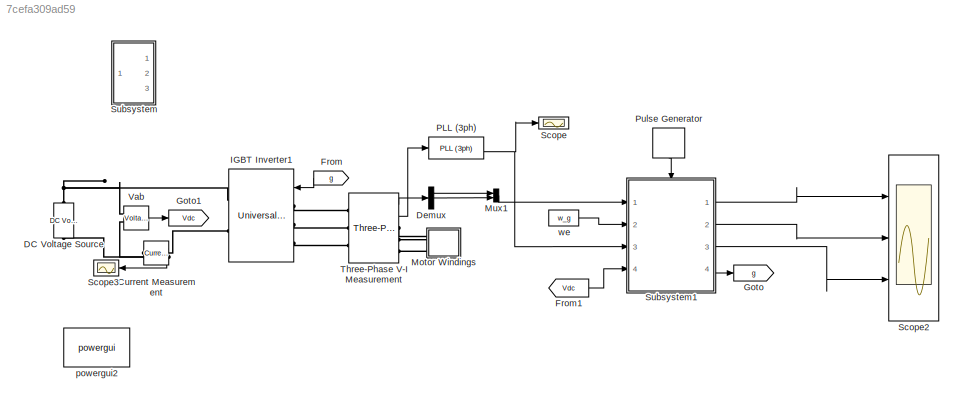
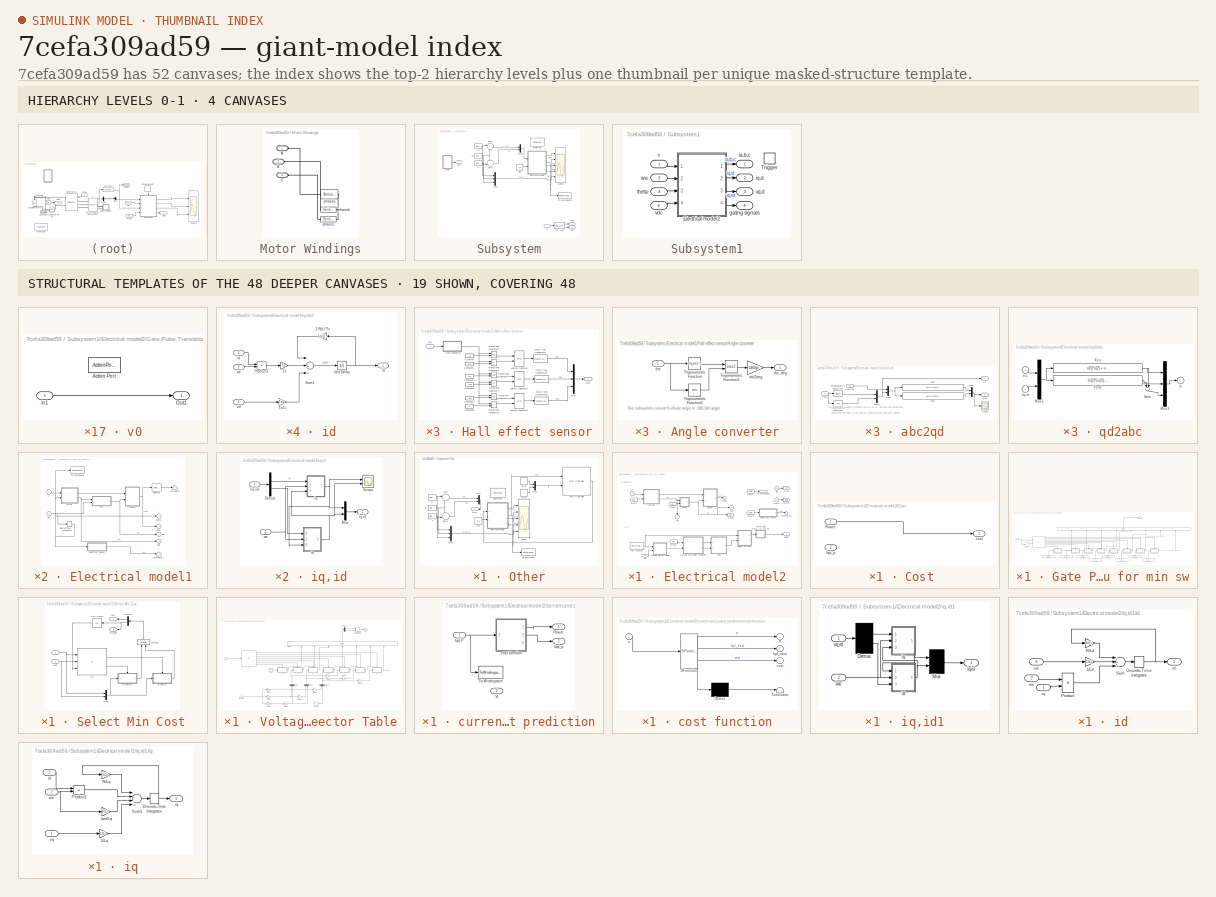
[diagram: thumbnail index - top-2 hierarchy levels (4 canvases) + 19 structural-template representatives of the remaining 48 canvases]
MODEL slx_7cefa309ad59
KIND model
CONFIG AbsTol = auto
CONFIG FixedStep = Ts
CONFIG MaxStep = auto
CONFIG MinStep = auto
CONFIG RelTol = 1e-3
CONFIG SampleTimeConstraint = Unconstrained
CONFIG Solver = VariableStepAuto
CONFIG SolverMode = Auto
CONFIG SolverName = VariableStepAuto
CONFIG StartTime = 0.0
CONFIG StopTime = 5
BLOCK [Reference] Current Measurement  REF=powerlib/Measurements/Current Measurement
  Ports = [0, 1, 0, 0, 0, 1, 1]
  SourceBlock = powerlib/Measurements/Current Measurement
  SourceType = Current Measurement
  UserDataPersistent = on
BLOCK [Reference] DC Voltage Source  REF=powerlib/Electrical
Sources/DC Voltage Source
  Ports = [0, 0, 0, 0, 0, 1, 1]
  SourceBlock = powerlib/Electrical\nSources/DC Voltage Source
  SourceType = DC Voltage Source
BLOCK [Demux] Demux
  DisplayOption = bar
  Outputs = 3
  Ports = [1, 3]
BLOCK [From] From
  GotoTag = g
BLOCK [From] From1
  GotoTag = Vdc
BLOCK [Goto] Goto
  GotoTag = g
BLOCK [Goto] Goto1
  GotoTag = Vdc
BLOCK [Reference] IGBT Inverter1  REF=powerlib/Power
Electronics/Universal Bridge
  AttributesFormatString = \n
  Ports = [1, 0, 0, 0, 0, 3, 2]
  SourceBlock = powerlib/Power\nElectronics/Universal Bridge
  SourceType = Universal Bridge
BLOCK [SubSystem] Motor Windings
  Ports = [0, 0, 0, 0, 0, 3]
  RequestExecContextInheritance = off
  Variant = off
BLOCK [PMIOPort] Motor Windings/A
  Port = 1
  Side = Left
BLOCK [PMIOPort] Motor Windings/B
  Port = 2
  Side = Left
BLOCK [PMIOPort] Motor Windings/C
  Port = 3
  Side = Left
BLOCK [Reference] Motor Windings/phasea  REF=powerlib/Elements/Series RLC Branch
  Ports = [0, 0, 0, 0, 0, 1, 1]
  SourceBlock = powerlib/Elements/Series RLC Branch
  SourceType = Series RLC Branch
BLOCK [Reference] Motor Windings/phaseb  REF=powerlib/Elements/Series RLC Branch
  Ports = [0, 0, 0, 0, 0, 1, 1]
  SourceBlock = powerlib/Elements/Series RLC Branch
  SourceType = Series RLC Branch
BLOCK [Reference] Motor Windings/phasec  REF=powerlib/Elements/Series RLC Branch
  Ports = [0, 0, 0, 0, 0, 1, 1]
  SourceBlock = powerlib/Elements/Series RLC Branch
  SourceType = Series RLC Branch
BLOCK [Mux] Mux1
  DisplayOption = bar
  Inputs = 2
  Ports = [2, 1]
BLOCK [Reference] PLL (3ph)  REF=powerlib_meascontrol/PLL/PLL
(3ph)
  Ports = [1, 2]
  SourceBlock = powerlib_meascontrol/PLL/PLL\n(3ph)
  SourceType = PLL (3ph)
BLOCK [DiscretePulseGenerator] Pulse Generator
  Period = Ts
  Ports = [0, 1]
  PulseType = Time based
  PulseWidth = 20
BLOCK [Scope] Scope
  Ports = [1]
  ScopeSpecificationString = Simulink.scopes.TimeScopeBlockCfg('CurrentConfiguration', extmgr.ConfigurationSet(extmgr.Configuration('Core','General UI',true),extmgr.Configuration('Core','Source UI',true),extmgr.Configuration('Sources','WiredSimulink',true,'DataLoggingVariableName','ScopeData4'),extmgr.Configuration('Visuals','Time Domain',true,'SerializedDisplays',{struct('MinYLimReal','-0.27554','MaxYLimReal','6.86247','YLab...<+1389ch>
BLOCK [Scope] Scope2
  NumInputPorts = 3
  Ports = [3]
  ScopeSpecificationString = Simulink.scopes.TimeScopeBlockCfg('CurrentConfiguration', extmgr.ConfigurationSet(extmgr.Configuration('Core','General UI',true),extmgr.Configuration('Core','Source UI',true),extmgr.Configuration('Sources','WiredSimulink',true,'DataLoggingVariableName','ScopeData2'),extmgr.Configuration('Visuals','Time Domain',true,'SerializedDisplays',{struct('MinYLimReal','-4096.69283','MaxYLimReal','4097.20983'...<+2824ch>
BLOCK [Scope] Scope3
  Ports = [1]
  ScopeSpecificationString = C++SS(StrPVP('SaveName','ScopeData3'),StrPVP('LimitDataPoints','on'),StrPVP('DataFormat','Array'),StrPVP('Decimation','1'),StrPVP('BlockParamSampleInput','off'))
BLOCK [SubSystem] Subsystem
  Commented = on
  Ports = [1, 3]
  RequestExecContextInheritance = off
  Variant = off
BLOCK [SubSystem] Subsystem/Electrical model1
  AncestorBlock = spsPMSynchronousMachineModel/Continuous
  Commented = on
  Ports = [2, 4]
  RequestExecContextInheritance = off
  Variant = off
BLOCK [DiscreteIntegrator] Subsystem/Electrical model1/Discret-Time Integrator
  ICPrevOutput = DiscIntNeverNeededParam
  ICPrevScaledInput = DiscIntNeverNeededParam
  InitialConditionSetting = State (most efficient)
  IntegratorMethod = Integration: Backward Euler
  Ports = [1, 1]
  SampleTime = Ts
  gainval = 1
BLOCK [SubSystem] Subsystem/Electrical model1/Hall effect sensor
  Ports = [1, 1]
  RequestExecContextInheritance = off
  Variant = off
BLOCK [SubSystem] Subsystem/Electrical model1/Hall effect sensor/Angle converter
  Ports = [1, 1]
  RequestExecContextInheritance = off
  Variant = off
BLOCK [Trigonometry] Subsystem/Electrical model1/Hall effect sensor/Angle converter/Trigonometric Function
  Ports = [1, 1]
BLOCK [Trigonometry] Subsystem/Electrical model1/Hall effect sensor/Angle converter/Trigonometric Function1
  Operator = cos
  Ports = [1, 1]
BLOCK [Trigonometry] Subsystem/Electrical model1/Hall effect sensor/Angle converter/Trigonometric Function2
  Operator = atan2
  Ports = [2, 1]
BLOCK [Gain] Subsystem/Electrical model1/Hall effect sensor/Angle converter/rad2deg
  Gain = 180/pi
BLOCK [Inport] Subsystem/Electrical model1/Hall effect sensor/Angle converter/the
  IconDisplay = Port number
BLOCK [Outport] Subsystem/Electrical model1/Hall effect sensor/Angle converter/the_deg
  IconDisplay = Port number
BLOCK [Constant] Subsystem/Electrical model1/Hall effect sensor/Constant
  Value = -60
BLOCK [Constant] Subsystem/Electrical model1/Hall effect sensor/Constant1
  Value = 120
BLOCK [Constant] Subsystem/Electrical model1/Hall effect sensor/Constant2
  Value = 60
BLOCK [Constant] Subsystem/Electrical model1/Hall effect sensor/Constant3
  Value = -120
BLOCK [Constant] Subsystem/Electrical model1/Hall effect sensor/Constant4
  Value = -180
BLOCK [Constant] Subsystem/Electrical model1/Hall effect sensor/Constant5
  Value = 0
BLOCK [DataTypeConversion] Subsystem/Electrical model1/Hall effect sensor/Data Type Conversion
  OutDataTypeStr = double
BLOCK [DataTypeConversion] Subsystem/Electrical model1/Hall effect sensor/Data Type Conversion1
  OutDataTypeStr = double
BLOCK [DataTypeConversion] Subsystem/Electrical model1/Hall effect sensor/Data Type Conversion2
  OutDataTypeStr = double
BLOCK [Outport] Subsystem/Electrical model1/Hall effect sensor/Hall
  IconDisplay = Port number
BLOCK [Logic] Subsystem/Electrical model1/Hall effect sensor/Logical Operator
  AllPortsSameDT = off
  OutDataTypeStr = boolean
  Ports = [2, 1]
BLOCK [Logic] Subsystem/Electrical model1/Hall effect sensor/Logical Operator1
  AllPortsSameDT = off
  Operator = OR
  OutDataTypeStr = boolean
  Ports = [2, 1]
BLOCK [Logic] Subsystem/Electrical model1/Hall effect sensor/Logical Operator2
  AllPortsSameDT = off
  OutDataTypeStr = boolean
  Ports = [2, 1]
BLOCK [Mux] Subsystem/Electrical model1/Hall effect sensor/Mux
  DisplayOption = bar
  Inputs = 3
  Ports = [3, 1]
BLOCK [RelationalOperator] Subsystem/Electrical model1/Hall effect sensor/Relational Operator1
  Operator = <=
  Ports = [2, 1]
BLOCK [RelationalOperator] Subsystem/Electrical model1/Hall effect sensor/Relational Operator2
  Ports = [2, 1]
BLOCK [RelationalOperator] Subsystem/Electrical model1/Hall effect sensor/Relational Operator3
  Operator = <=
  Ports = [2, 1]
BLOCK [RelationalOperator] Subsystem/Electrical model1/Hall effect sensor/Relational Operator4
  Ports = [2, 1]
BLOCK [RelationalOperator] Subsystem/Electrical model1/Hall effect sensor/Relational Operator5
  Operator = <=
  Ports = [2, 1]
BLOCK [RelationalOperator] Subsystem/Electrical model1/Hall effect sensor/Relational Operator6
  Ports = [2, 1]
BLOCK [Inport] Subsystem/Electrical model1/Hall effect sensor/the
  IconDisplay = Port number
BLOCK [Selector] Subsystem/Electrical model1/Selector
  IndexOptions = Index vector (dialog)
  Indices = 1:2
  InputPortWidth = 3
  OutputSizes = 1
  Ports = [1, 1]
BLOCK [Terminator] Subsystem/Electrical model1/Terminator
BLOCK [Terminator] Subsystem/Electrical model1/Terminator1
BLOCK [ToWorkspace] Subsystem/Electrical model1/To Workspace
  FixptAsFi = on
  MaxDataPoints = inf
  Ports = [1]
  SampleTime = -1
  Save2DSignal = 2-D array (concatenate along first dimension)
  VariableName = theta
BLOCK [SubSystem] Subsystem/Electrical model1/abc2qd
  Ports = [2, 2]
  RequestExecContextInheritance = off
  Variant = off
BLOCK [Fcn] Subsystem/Electrical model1/abc2qd/Fcn2
  Expr = (u[4]*(2*u[1]+u[2]) + (sqrt(3)*u[2]*u[3])) * 1/3
BLOCK [Fcn] Subsystem/Electrical model1/abc2qd/Fcn3
  Expr = (u[3]*(2*u[1]+u[2]) + (-sqrt(3)*u[2]*u[4])) * 1/3
BLOCK [Mux] Subsystem/Electrical model1/abc2qd/Mux
  DisplayOption = bar
  Inputs = 2
  Ports = [2, 1]
BLOCK [Mux] Subsystem/Electrical model1/abc2qd/Mux1
  DisplayOption = bar
  Inputs = 2
  Ports = [2, 1]
BLOCK [Mux] Subsystem/Electrical model1/abc2qd/Mux2
  DisplayOption = bar
  Inputs = 2
  Ports = [2, 1]
BLOCK [Scope] Subsystem/Electrical model1/abc2qd/Scope
  Ports = [1]
  ScopeSpecificationString = Simulink.scopes.TimeScopeBlockCfg('CurrentConfiguration', extmgr.ConfigurationSet(extmgr.Configuration('Core','General UI',true),extmgr.Configuration('Core','Source UI',true),extmgr.Configuration('Sources','WiredSimulink',true,'DataLoggingVariableName','ScopeData2'),extmgr.Configuration('Visuals','Time Domain',true,'SerializedDisplays',{struct('MinYLimReal','-250.00000','MaxYLimReal','250.00000','...<+1454ch>  <repeated x3 — deduplicated; at blocks: Scope>
BLOCK [Trigonometry] Subsystem/Electrical model1/abc2qd/Trigonometric Function1
  Operator = cos
  Ports = [1, 1]
  SampleTime = Ts
BLOCK [Trigonometry] Subsystem/Electrical model1/abc2qd/Trigonometric Function2
  Ports = [1, 1]
  SampleTime = Ts
BLOCK [Inport] Subsystem/Electrical model1/abc2qd/Vab,Vbc
  IconDisplay = Port number
BLOCK [Outport] Subsystem/Electrical model1/abc2qd/s,c
  IconDisplay = Port number
  InitialOutput = 0
BLOCK [Inport] Subsystem/Electrical model1/abc2qd/theta
  IconDisplay = Port number
  Port = 2
BLOCK [Outport] Subsystem/Electrical model1/abc2qd/vq,vd
  IconDisplay = Port number
  InitialOutput = 0
  Port = 2
BLOCK [SubSystem] Subsystem/Electrical model1/iq,id
  Ports = [2, 1]
  RequestExecContextInheritance = off
  Variant = off
BLOCK [Demux] Subsystem/Electrical model1/iq,id/Demux
  DisplayOption = bar
  Outputs = 2
  Ports = [1, 2]
BLOCK [Mux] Subsystem/Electrical model1/iq,id/Mux
  DisplayOption = bar
  Inputs = 2
  Ports = [2, 1]
BLOCK [Scope] Subsystem/Electrical model1/iq,id/Scope
  NumInputPorts = 2
  Ports = [2]
  ScopeSpecificationString = Simulink.scopes.TimeScopeBlockCfg('CurrentConfiguration', extmgr.ConfigurationSet(extmgr.Configuration('Core','General UI',true),extmgr.Configuration('Core','Source UI',true),extmgr.Configuration('Sources','WiredSimulink',true,'DataLoggingVariableName','ScopeData1'),extmgr.Configuration('Visuals','Time Domain',true,'SerializedDisplays',{struct('MinYLimReal','-15894686752611658000000000000000000000...<+3160ch>
BLOCK [SubSystem] Subsystem/Electrical model1/iq,id/id
  Ports = [3, 1]
  RequestExecContextInheritance = off
  Variant = off
BLOCK [Gain] Subsystem/Electrical model1/iq,id/id/1-Ri//Li*Ts
  Gain = 1-ri/Li*Ts
BLOCK [Product] Subsystem/Electrical model1/iq,id/id/Product1
  Ports = [2, 1]
  RndMeth = Floor
BLOCK [Sum] Subsystem/Electrical model1/iq,id/id/Sum1
  Inputs = -++
  Ports = [3, 1]
BLOCK [Gain] Subsystem/Electrical model1/iq,id/id/Ts
  Gain = Ts
BLOCK [Gain] Subsystem/Electrical model1/iq,id/id/Ts//Li
  Gain = Ts/Li
BLOCK [UnitDelay] Subsystem/Electrical model1/iq,id/id/Unit Delay
  InputProcessing = Elements as channels (sample based)
  SampleTime = -1
BLOCK [Outport] Subsystem/Electrical model1/iq,id/id/id
  IconDisplay = Port number
  InitialOutput = 0
BLOCK [Inport] Subsystem/Electrical model1/iq,id/id/iq
  IconDisplay = Port number
  Port = 3
BLOCK [Inport] Subsystem/Electrical model1/iq,id/id/vd
  IconDisplay = Port number
BLOCK [Inport] Subsystem/Electrical model1/iq,id/id/we
  IconDisplay = Port number
  Port = 2
BLOCK [SubSystem] Subsystem/Electrical model1/iq,id/iq
  Ports = [3, 1]
  RequestExecContextInheritance = off
  Variant = off
BLOCK [Outport] Subsystem/Electrical model1/iq,id/iq,id
  IconDisplay = Port number
  InitialOutput = 0
BLOCK [Gain] Subsystem/Electrical model1/iq,id/iq/1-Ri//Li*Ts
  Gain = 1-ri/Li*Ts
BLOCK [Product] Subsystem/Electrical model1/iq,id/iq/Product1
  Ports = [2, 1]
  RndMeth = Floor
BLOCK [Sum] Subsystem/Electrical model1/iq,id/iq/Sum1
  Inputs = --+
  Ports = [3, 1]
BLOCK [Gain] Subsystem/Electrical model1/iq,id/iq/Ts
  Gain = Ts
BLOCK [Gain] Subsystem/Electrical model1/iq,id/iq/Ts//Li
  Gain = Ts/Li
BLOCK [UnitDelay] Subsystem/Electrical model1/iq,id/iq/Unit Delay
  InputProcessing = Elements as channels (sample based)
  SampleTime = -1
BLOCK [Inport] Subsystem/Electrical model1/iq,id/iq/id
  IconDisplay = Port number
  Port = 3
BLOCK [Outport] Subsystem/Electrical model1/iq,id/iq/iq
  IconDisplay = Port number
  InitialOutput = 0
BLOCK [Inport] Subsystem/Electrical model1/iq,id/iq/vq
  IconDisplay = Port number
BLOCK [Inport] Subsystem/Electrical model1/iq,id/iq/we
  IconDisplay = Port number
  Port = 2
BLOCK [Inport] Subsystem/Electrical model1/iq,id/vq,vd
  IconDisplay = Port number
BLOCK [Inport] Subsystem/Electrical model1/iq,id/we
  IconDisplay = Port number
  Port = 2
BLOCK [Outport] Subsystem/Electrical model1/iqd
  IconDisplay = Port number
  InitialOutput = 0
  Port = 2
BLOCK [Outport] Subsystem/Electrical model1/isabc
  IconDisplay = Port number
  InitialOutput = 0
BLOCK [SubSystem] Subsystem/Electrical model1/qd2abc
  Ports = [2, 1]
  RequestExecContextInheritance = off
  Variant = off
BLOCK [Fcn] Subsystem/Electrical model1/qd2abc/Fcn
  Expr = u[3]*u[2] + u[4]*u[1]
BLOCK [Fcn] Subsystem/Electrical model1/qd2abc/Fcn1
  Expr = (u[2]*(-u[3]-sqrt(3)*u[4]) + u[1]*(sqrt(3)*u[3]-u[4]))*0.5
BLOCK [Mux] Subsystem/Electrical model1/qd2abc/Mux1
  DisplayOption = bar
  Inputs = 2
  Ports = [2, 1]
BLOCK [Mux] Subsystem/Electrical model1/qd2abc/Mux3
  DisplayOption = bar
  Inputs = 3
  Ports = [3, 1]
BLOCK [Sum] Subsystem/Electrical model1/qd2abc/Sum
  Inputs = --
  Ports = [2, 1]
BLOCK [Inport] Subsystem/Electrical model1/qd2abc/iq,id
  IconDisplay = Port number
  Port = 2
BLOCK [Outport] Subsystem/Electrical model1/qd2abc/is
  IconDisplay = Port number
  InitialOutput = 0
BLOCK [Inport] Subsystem/Electrical model1/qd2abc/s,c
  IconDisplay = Port number
BLOCK [Outport] Subsystem/Electrical model1/theta
  IconDisplay = Port number
  InitialOutput = 0
  Port = 4
BLOCK [Inport] Subsystem/Electrical model1/v
  IconDisplay = Port number
BLOCK [Outport] Subsystem/Electrical model1/vqd
  IconDisplay = Port number
  InitialOutput = 0
  Port = 3
BLOCK [Inport] Subsystem/Electrical model1/we
  IconDisplay = Port number
  Port = 2
BLOCK [Inport] Subsystem/In1
  IconDisplay = Port number
BLOCK [Mux] Subsystem/Mux3
  Commented = on
  DisplayOption = bar
  Inputs = 2
  Ports = [2, 1]
BLOCK [Mux] Subsystem/Mux4
  Commented = on
  DisplayOption = bar
  Inputs = 3
  Ports = [3, 1]
BLOCK [SubSystem] Subsystem/Other
  Commented = on
  Ports = [0, 1]
  RequestExecContextInheritance = off
  Variant = off
BLOCK [SubSystem] Subsystem/Other/Electrical model
  AncestorBlock = spsPMSynchronousMachineModel/Continuous
  Ports = [2, 4]
  RequestExecContextInheritance = off
  Variant = off
BLOCK [DiscreteIntegrator] Subsystem/Other/Electrical model/Discret-Time Integrator
  ICPrevOutput = DiscIntNeverNeededParam
  ICPrevScaledInput = DiscIntNeverNeededParam
  InitialConditionSetting = State (most efficient)
  IntegratorMethod = Integration: Backward Euler
  Ports = [1, 1]
  SampleTime = Ts
  gainval = 1
BLOCK [SubSystem] Subsystem/Other/Electrical model/Hall effect sensor
  Ports = [1, 1]
  RequestExecContextInheritance = off
  Variant = off
BLOCK [SubSystem] Subsystem/Other/Electrical model/Hall effect sensor/Angle converter
  Ports = [1, 1]
  RequestExecContextInheritance = off
  Variant = off
BLOCK [Trigonometry] Subsystem/Other/Electrical model/Hall effect sensor/Angle converter/Trigonometric Function
  Ports = [1, 1]
BLOCK [Trigonometry] Subsystem/Other/Electrical model/Hall effect sensor/Angle converter/Trigonometric Function1
  Operator = cos
  Ports = [1, 1]
BLOCK [Trigonometry] Subsystem/Other/Electrical model/Hall effect sensor/Angle converter/Trigonometric Function2
  Operator = atan2
  Ports = [2, 1]
BLOCK [Gain] Subsystem/Other/Electrical model/Hall effect sensor/Angle converter/rad2deg
  Gain = 180/pi
BLOCK [Inport] Subsystem/Other/Electrical model/Hall effect sensor/Angle converter/the
  IconDisplay = Port number
BLOCK [Outport] Subsystem/Other/Electrical model/Hall effect sensor/Angle converter/the_deg
  IconDisplay = Port number
BLOCK [Constant] Subsystem/Other/Electrical model/Hall effect sensor/Constant
  Value = -60
BLOCK [Constant] Subsystem/Other/Electrical model/Hall effect sensor/Constant1
  Value = 120
BLOCK [Constant] Subsystem/Other/Electrical model/Hall effect sensor/Constant2
  Value = 60
BLOCK [Constant] Subsystem/Other/Electrical model/Hall effect sensor/Constant3
  Value = -120
BLOCK [Constant] Subsystem/Other/Electrical model/Hall effect sensor/Constant4
  Value = -180
BLOCK [Constant] Subsystem/Other/Electrical model/Hall effect sensor/Constant5
  Value = 0
BLOCK [DataTypeConversion] Subsystem/Other/Electrical model/Hall effect sensor/Data Type Conversion
  OutDataTypeStr = double
BLOCK [DataTypeConversion] Subsystem/Other/Electrical model/Hall effect sensor/Data Type Conversion1
  OutDataTypeStr = double
BLOCK [DataTypeConversion] Subsystem/Other/Electrical model/Hall effect sensor/Data Type Conversion2
  OutDataTypeStr = double
BLOCK [Outport] Subsystem/Other/Electrical model/Hall effect sensor/Hall
  IconDisplay = Port number
BLOCK [Logic] Subsystem/Other/Electrical model/Hall effect sensor/Logical Operator
  AllPortsSameDT = off
  OutDataTypeStr = boolean
  Ports = [2, 1]
BLOCK [Logic] Subsystem/Other/Electrical model/Hall effect sensor/Logical Operator1
  AllPortsSameDT = off
  Operator = OR
  OutDataTypeStr = boolean
  Ports = [2, 1]
BLOCK [Logic] Subsystem/Other/Electrical model/Hall effect sensor/Logical Operator2
  AllPortsSameDT = off
  OutDataTypeStr = boolean
  Ports = [2, 1]
BLOCK [Mux] Subsystem/Other/Electrical model/Hall effect sensor/Mux
  DisplayOption = bar
  Inputs = 3
  Ports = [3, 1]
BLOCK [RelationalOperator] Subsystem/Other/Electrical model/Hall effect sensor/Relational Operator1
  Operator = <=
  Ports = [2, 1]
BLOCK [RelationalOperator] Subsystem/Other/Electrical model/Hall effect sensor/Relational Operator2
  Ports = [2, 1]
BLOCK [RelationalOperator] Subsystem/Other/Electrical model/Hall effect sensor/Relational Operator3
  Operator = <=
  Ports = [2, 1]
BLOCK [RelationalOperator] Subsystem/Other/Electrical model/Hall effect sensor/Relational Operator4
  Ports = [2, 1]
BLOCK [RelationalOperator] Subsystem/Other/Electrical model/Hall effect sensor/Relational Operator5
  Operator = <=
  Ports = [2, 1]
BLOCK [RelationalOperator] Subsystem/Other/Electrical model/Hall effect sensor/Relational Operator6
  Ports = [2, 1]
BLOCK [Inport] Subsystem/Other/Electrical model/Hall effect sensor/the
  IconDisplay = Port number
BLOCK [Selector] Subsystem/Other/Electrical model/Selector
  IndexOptions = Index vector (dialog)
  Indices = 1:2
  InputPortWidth = 3
  OutputSizes = 1
  Ports = [1, 1]
BLOCK [Terminator] Subsystem/Other/Electrical model/Terminator
BLOCK [Terminator] Subsystem/Other/Electrical model/Terminator1
BLOCK [ToWorkspace] Subsystem/Other/Electrical model/To Workspace
  FixptAsFi = on
  MaxDataPoints = inf
  Ports = [1]
  SampleTime = -1
  Save2DSignal = 2-D array (concatenate along first dimension)
  VariableName = theta_cont
BLOCK [SubSystem] Subsystem/Other/Electrical model/abc2qd
  Ports = [2, 2]
  RequestExecContextInheritance = off
  Variant = off
BLOCK [Fcn] Subsystem/Other/Electrical model/abc2qd/Fcn2
  Expr = (u[4]*(2*u[1]+u[2]) + (sqrt(3)*u[2]*u[3])) * 1/3
BLOCK [Fcn] Subsystem/Other/Electrical model/abc2qd/Fcn3
  Expr = (u[3]*(2*u[1]+u[2]) + (-sqrt(3)*u[2]*u[4])) * 1/3
BLOCK [Mux] Subsystem/Other/Electrical model/abc2qd/Mux
  DisplayOption = bar
  Inputs = 2
  Ports = [2, 1]
BLOCK [Mux] Subsystem/Other/Electrical model/abc2qd/Mux1
  DisplayOption = bar
  Inputs = 2
  Ports = [2, 1]
BLOCK [Mux] Subsystem/Other/Electrical model/abc2qd/Mux2
  DisplayOption = bar
  Inputs = 2
  Ports = [2, 1]
BLOCK [Scope] Subsystem/Other/Electrical model/abc2qd/Scope
  Ports = [1]
BLOCK [Trigonometry] Subsystem/Other/Electrical model/abc2qd/Trigonometric Function1
  Operator = cos
  Ports = [1, 1]
  SampleTime = Ts
BLOCK [Trigonometry] Subsystem/Other/Electrical model/abc2qd/Trigonometric Function2
  Ports = [1, 1]
  SampleTime = Ts
BLOCK [Inport] Subsystem/Other/Electrical model/abc2qd/Vab,Vbc
  IconDisplay = Port number
BLOCK [Outport] Subsystem/Other/Electrical model/abc2qd/s,c
  IconDisplay = Port number
  InitialOutput = 0
BLOCK [Inport] Subsystem/Other/Electrical model/abc2qd/theta
  IconDisplay = Port number
  Port = 2
BLOCK [Outport] Subsystem/Other/Electrical model/abc2qd/vq,vd
  IconDisplay = Port number
  InitialOutput = 0
  Port = 2
BLOCK [SubSystem] Subsystem/Other/Electrical model/iq,id
  Ports = [2, 1]
  RequestExecContextInheritance = off
  Variant = off
BLOCK [Demux] Subsystem/Other/Electrical model/iq,id/Demux
  DisplayOption = bar
  Outputs = 2
  Ports = [1, 2]
BLOCK [Mux] Subsystem/Other/Electrical model/iq,id/Mux
  DisplayOption = bar
  Inputs = 2
  Ports = [2, 1]
BLOCK [Scope] Subsystem/Other/Electrical model/iq,id/Scope
  NumInputPorts = 2
  Ports = [2]
  ScopeSpecificationString = Simulink.scopes.TimeScopeBlockCfg('CurrentConfiguration', extmgr.ConfigurationSet(extmgr.Configuration('Core','General UI',true),extmgr.Configuration('Core','Source UI',true),extmgr.Configuration('Sources','WiredSimulink',true,'DataLoggingVariableName','ScopeData1'),extmgr.Configuration('Visuals','Time Domain',true,'SerializedDisplays',{struct('MinYLimReal','-15894686752611658000000000000000000000...<+3160ch>
BLOCK [SubSystem] Subsystem/Other/Electrical model/iq,id/id
  Ports = [3, 1]
  RequestExecContextInheritance = off
  Variant = off
BLOCK [Gain] Subsystem/Other/Electrical model/iq,id/id/1-Ri//Li*Ts
  Gain = 1-ri/Li*Ts
BLOCK [Product] Subsystem/Other/Electrical model/iq,id/id/Product1
  Ports = [2, 1]
  RndMeth = Floor
BLOCK [Sum] Subsystem/Other/Electrical model/iq,id/id/Sum1
  Inputs = -++
  Ports = [3, 1]
BLOCK [Gain] Subsystem/Other/Electrical model/iq,id/id/Ts
  Gain = Ts
BLOCK [Gain] Subsystem/Other/Electrical model/iq,id/id/Ts//Li
  Gain = Ts/Li
BLOCK [UnitDelay] Subsystem/Other/Electrical model/iq,id/id/Unit Delay
  InputProcessing = Elements as channels (sample based)
  SampleTime = -1
BLOCK [Outport] Subsystem/Other/Electrical model/iq,id/id/id
  IconDisplay = Port number
  InitialOutput = 0
BLOCK [Inport] Subsystem/Other/Electrical model/iq,id/id/iq
  IconDisplay = Port number
  Port = 3
BLOCK [Inport] Subsystem/Other/Electrical model/iq,id/id/vd
  IconDisplay = Port number
BLOCK [Inport] Subsystem/Other/Electrical model/iq,id/id/we
  IconDisplay = Port number
  Port = 2
BLOCK [SubSystem] Subsystem/Other/Electrical model/iq,id/iq
  Ports = [3, 1]
  RequestExecContextInheritance = off
  Variant = off
BLOCK [Outport] Subsystem/Other/Electrical model/iq,id/iq,id
  IconDisplay = Port number
  InitialOutput = 0
BLOCK [Gain] Subsystem/Other/Electrical model/iq,id/iq/1-Ri//Li*Ts
  Gain = 1-ri/Li*Ts
BLOCK [Product] Subsystem/Other/Electrical model/iq,id/iq/Product1
  Ports = [2, 1]
  RndMeth = Floor
BLOCK [Sum] Subsystem/Other/Electrical model/iq,id/iq/Sum1
  Inputs = --+
  Ports = [3, 1]
BLOCK [Gain] Subsystem/Other/Electrical model/iq,id/iq/Ts
  Gain = Ts
BLOCK [Gain] Subsystem/Other/Electrical model/iq,id/iq/Ts//Li
  Gain = Ts/Li
BLOCK [UnitDelay] Subsystem/Other/Electrical model/iq,id/iq/Unit Delay
  InputProcessing = Elements as channels (sample based)
  SampleTime = -1
BLOCK [Inport] Subsystem/Other/Electrical model/iq,id/iq/id
  IconDisplay = Port number
  Port = 3
BLOCK [Outport] Subsystem/Other/Electrical model/iq,id/iq/iq
  IconDisplay = Port number
  InitialOutput = 0
BLOCK [Inport] Subsystem/Other/Electrical model/iq,id/iq/vq
  IconDisplay = Port number
BLOCK [Inport] Subsystem/Other/Electrical model/iq,id/iq/we
  IconDisplay = Port number
  Port = 2
BLOCK [Inport] Subsystem/Other/Electrical model/iq,id/vq,vd
  IconDisplay = Port number
BLOCK [Inport] Subsystem/Other/Electrical model/iq,id/we
  IconDisplay = Port number
  Port = 2
BLOCK [Outport] Subsystem/Other/Electrical model/iqd
  IconDisplay = Port number
  InitialOutput = 0
  Port = 2
BLOCK [Outport] Subsystem/Other/Electrical model/isabc
  IconDisplay = Port number
  InitialOutput = 0
BLOCK [SubSystem] Subsystem/Other/Electrical model/qd2abc
  Ports = [2, 1]
  RequestExecContextInheritance = off
  Variant = off
BLOCK [Fcn] Subsystem/Other/Electrical model/qd2abc/Fcn
  Expr = u[3]*u[2] + u[4]*u[1]
BLOCK [Fcn] Subsystem/Other/Electrical model/qd2abc/Fcn1
  Expr = (u[2]*(-u[3]-sqrt(3)*u[4]) + u[1]*(sqrt(3)*u[3]-u[4]))*0.5
BLOCK [Mux] Subsystem/Other/Electrical model/qd2abc/Mux1
  DisplayOption = bar
  Inputs = 2
  Ports = [2, 1]
BLOCK [Mux] Subsystem/Other/Electrical model/qd2abc/Mux3
  DisplayOption = bar
  Inputs = 3
  Ports = [3, 1]
BLOCK [Sum] Subsystem/Other/Electrical model/qd2abc/Sum
  Inputs = --
  Ports = [2, 1]
BLOCK [Inport] Subsystem/Other/Electrical model/qd2abc/iq,id
  IconDisplay = Port number
  Port = 2
BLOCK [Outport] Subsystem/Other/Electrical model/qd2abc/is
  IconDisplay = Port number
  InitialOutput = 0
BLOCK [Inport] Subsystem/Other/Electrical model/qd2abc/s,c
  IconDisplay = Port number
BLOCK [Outport] Subsystem/Other/Electrical model/theta
  IconDisplay = Port number
  InitialOutput = 0
  Port = 4
BLOCK [Inport] Subsystem/Other/Electrical model/v
  IconDisplay = Port number
BLOCK [Outport] Subsystem/Other/Electrical model/vqd
  IconDisplay = Port number
  InitialOutput = 0
  Port = 3
BLOCK [Inport] Subsystem/Other/Electrical model/we
  IconDisplay = Port number
  Port = 2
BLOCK [Reference] Subsystem/Other/MPC Controller  REF=mpclib/MPC Controller  (lib defined in mdl_ae329e0e0455)
  Ports = [2, 1]
  SCDEnableBlockLinearizationSpecification = on
  SourceBlock = mpclib/MPC Controller
  SourceType = MPC
BLOCK [Mux] Subsystem/Other/Mux
  Commented = on
  DisplayOption = bar
  Inputs = 2
  Ports = [2, 1]
BLOCK [Mux] Subsystem/Other/Mux1
  DisplayOption = bar
  Inputs = 3
  Ports = [3, 1]
BLOCK [Mux] Subsystem/Other/Mux2
  DisplayOption = bar
  Inputs = 2
  Ports = [2, 1]
BLOCK [Outport] Subsystem/Other/Out1
  IconDisplay = Port number
BLOCK [Scope] Subsystem/Other/Scope
  NumInputPorts = 5
  Ports = [5]
  ScopeSpecificationString = Simulink.scopes.TimeScopeBlockCfg('CurrentConfiguration', extmgr.ConfigurationSet(extmgr.Configuration('Core','General UI',true),extmgr.Configuration('Core','Source UI',true),extmgr.Configuration('Sources','WiredSimulink',true),extmgr.Configuration('Visuals','Time Domain',true,'SerializedDisplays',{struct('MinYLimReal','-0.13536','MaxYLimReal','0.13586','YLabelReal','','MinYLimMag','0.00000','MaxY...<+4905ch>
BLOCK [Sum] Subsystem/Other/Sum
  Commented = on
  IconShape = round
  InputSameDT = off
  Inputs = |+-
  OutDataTypeStr = Inherit: Inherit via internal rule
  Ports = [2, 1]
  SaturateOnIntegerOverflow = off
BLOCK [Sum] Subsystem/Other/Sum1
  Commented = on
  IconShape = round
  InputSameDT = off
  Inputs = +-|
  OutDataTypeStr = Inherit: Inherit via internal rule
  Ports = [2, 1]
  SaturateOnIntegerOverflow = off
BLOCK [ToWorkspace] Subsystem/Other/To Workspace
  FixptAsFi = on
  MaxDataPoints = inf
  Ports = [1]
  SampleTime = -1
  Save2DSignal = 3-D array (concatenate along third dimension)
  VariableName = current
BLOCK [Reference] Subsystem/Other/a  REF=dspsrcs4/Sine Wave
  Commented = on
  Ports = [0, 1]
  SourceBlock = dspsrcs4/Sine Wave
  SourceType = Sine Wave
BLOCK [Reference] Subsystem/Other/b  REF=dspsrcs4/Sine Wave
  Commented = on
  Ports = [0, 1]
  SourceBlock = dspsrcs4/Sine Wave
  SourceType = Sine Wave
BLOCK [Reference] Subsystem/Other/c  REF=dspsrcs4/Sine Wave
  Commented = on
  Ports = [0, 1]
  SourceBlock = dspsrcs4/Sine Wave
  SourceType = Sine Wave
BLOCK [Constant] Subsystem/Other/id_ref
  Value = 0
BLOCK [Constant] Subsystem/Other/iq_ref
BLOCK [Reference] Subsystem/Other/powergui  REF=powerlib/powergui
  Ports = []
  Priority = 1
  SourceBlock = powerlib/powergui
  SourceType = PSB option menu block
  UserDataPersistent = on
BLOCK [Constant] Subsystem/Other/we
  Value = w_g
BLOCK [Outport] Subsystem/Out1
  IconDisplay = Port number
BLOCK [Outport] Subsystem/Out2
  IconDisplay = Port number
  Port = 2
BLOCK [Outport] Subsystem/Out3
  IconDisplay = Port number
  Port = 3
BLOCK [Reference] Subsystem/PLL (3ph)  REF=powerlib_meascontrol/PLL/PLL
(3ph)
  Ports = [1, 2]
  SourceBlock = powerlib_meascontrol/PLL/PLL\n(3ph)
  SourceType = PLL (3ph)
BLOCK [Scope] Subsystem/Scope1
  Commented = on
  NumInputPorts = 5
  Ports = [5]
  ScopeSpecificationString = Simulink.scopes.TimeScopeBlockCfg('CurrentConfiguration', extmgr.ConfigurationSet(extmgr.Configuration('Core','General UI',true),extmgr.Configuration('Core','Source UI',true),extmgr.Configuration('Sources','WiredSimulink',true,'DataLoggingVariableName','ScopeData1'),extmgr.Configuration('Visuals','Time Domain',true,'SerializedDisplays',{struct('MinYLimReal','-0.13536','MaxYLimReal','0.13586','YLab...<+4944ch>
BLOCK [Sum] Subsystem/Sum2
  Commented = on
  IconShape = round
  InputSameDT = off
  Inputs = |+-
  OutDataTypeStr = Inherit: Inherit via internal rule
  Ports = [2, 1]
  SaturateOnIntegerOverflow = off
BLOCK [Sum] Subsystem/Sum3
  Commented = on
  IconShape = round
  InputSameDT = off
  Inputs = +-|
  OutDataTypeStr = Inherit: Inherit via internal rule
  Ports = [2, 1]
  SaturateOnIntegerOverflow = off
BLOCK [ToWorkspace] Subsystem/To Workspace1
  Commented = on
  FixptAsFi = on
  MaxDataPoints = inf
  Ports = [1]
  SampleTime = -1
  Save2DSignal = 3-D array (concatenate along third dimension)
  VariableName = current1
BLOCK [Reference] Subsystem/a1  REF=dspsrcs4/Sine Wave
  Commented = on
  Ports = [0, 1]
  SourceBlock = dspsrcs4/Sine Wave
  SourceType = Sine Wave
BLOCK [Reference] Subsystem/b1  REF=dspsrcs4/Sine Wave
  Commented = on
  Ports = [0, 1]
  SourceBlock = dspsrcs4/Sine Wave
  SourceType = Sine Wave
BLOCK [Reference] Subsystem/c1  REF=dspsrcs4/Sine Wave
  Commented = on
  Ports = [0, 1]
  SourceBlock = dspsrcs4/Sine Wave
  SourceType = Sine Wave
BLOCK [Reference] Subsystem/powergui1  REF=powerlib/powergui
  Commented = on
  Ports = []
  Priority = 1
  SourceBlock = powerlib/powergui
  SourceType = PSB option menu block
  UserDataPersistent = on
BLOCK [Constant] Subsystem/we1
  Commented = on
  Value = w_g
BLOCK [SubSystem] Subsystem1
  Ports = [4, 4, 0, 1]
  RequestExecContextInheritance = off
  Variant = off
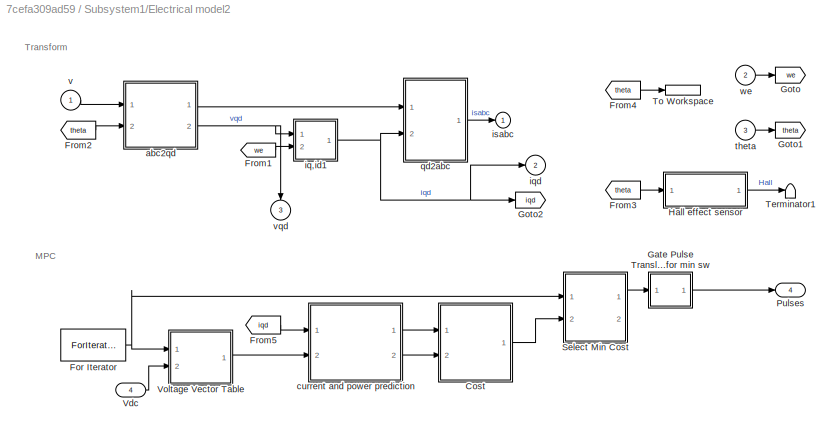
BLOCK [SubSystem] Subsystem1/Electrical model2
  AncestorBlock = spsPMSynchronousMachineModel/Continuous
  Ports = [4, 4]
  RequestExecContextInheritance = off
  Variant = off
BLOCK [SubSystem] Subsystem1/Electrical model2/Cost 
  Ports = [2, 1]
  RequestExecContextInheritance = off
  Variant = off
BLOCK [Inport] Subsystem1/Electrical model2/Cost /Iqd_p 
  IconDisplay = Port number
  Port = 2
BLOCK [Inport] Subsystem1/Electrical model2/Cost /Power
  IconDisplay = Port number
BLOCK [Outport] Subsystem1/Electrical model2/Cost /cost
  IconDisplay = Port number
BLOCK [ForIterator] Subsystem1/Electrical model2/For Iterator
  IterationLimit = 7
  IterationVariableDataType = double
  Ports = [0, 1]
BLOCK [From] Subsystem1/Electrical model2/From1
  GotoTag = we
BLOCK [From] Subsystem1/Electrical model2/From2
  GotoTag = theta
BLOCK [From] Subsystem1/Electrical model2/From3
  GotoTag = theta
BLOCK [From] Subsystem1/Electrical model2/From4
  GotoTag = theta
BLOCK [From] Subsystem1/Electrical model2/From5
  GotoTag = iqd
BLOCK [SubSystem] Subsystem1/Electrical model2/Gate Pulse Translation for min sw
  Ports = [1, 1]
  RequestExecContextInheritance = off
  Variant = off
BLOCK [Delay] Subsystem1/Electrical model2/Gate Pulse Translation for min sw/Delay
  DelayLength = 1
  InitialCondition = 0
  InputPortMap = u0
  Ports = [1, 1]
BLOCK [If] Subsystem1/Electrical model2/Gate Pulse Translation for min sw/If
  ElseIfExpressions = u1==2, u1==3, u1==4, u1==5, u1==6,(((u1==7)&(u2==2)) | ((u1==7)&(u2==4)) | ((u1==7)&(u2==6)))
  IfExpression = u1==1
  NumInputs = 2
  Ports = [2, 8]
BLOCK [Merge] Subsystem1/Electrical model2/Gate Pulse Translation for min sw/Merge
  Inputs = 8
  Ports = [8, 1]
BLOCK [Constant] Subsystem1/Electrical model2/Gate Pulse Translation for min sw/cons
  Value = [1,0,1,0,1,0]
BLOCK [Constant] Subsystem1/Electrical model2/Gate Pulse Translation for min sw/cons1
  Value = [1,0,0,1,0,1]
BLOCK [Constant] Subsystem1/Electrical model2/Gate Pulse Translation for min sw/cons2
  Value = [1,0,1,0,0,1]
BLOCK [Constant] Subsystem1/Electrical model2/Gate Pulse Translation for min sw/cons3
  Value = [0,1,1,0,0,1]
BLOCK [Constant] Subsystem1/Electrical model2/Gate Pulse Translation for min sw/cons4
  Value = [0,1,1,0,1,0]
BLOCK [Constant] Subsystem1/Electrical model2/Gate Pulse Translation for min sw/cons5
  Value = [0,1,0,1,1,0]
BLOCK [Constant] Subsystem1/Electrical model2/Gate Pulse Translation for min sw/cons6
  Value = [1,0,0,1,1,0]
BLOCK [Constant] Subsystem1/Electrical model2/Gate Pulse Translation for min sw/cons7
  Value = [0,1,0,1,0,1]
BLOCK [Inport] Subsystem1/Electrical model2/Gate Pulse Translation for min sw/i
  IconDisplay = Port number
BLOCK [Outport] Subsystem1/Electrical model2/Gate Pulse Translation for min sw/pulses
  IconDisplay = Port number
BLOCK [SubSystem] Subsystem1/Electrical model2/Gate Pulse Translation for min sw/v0
  Ports = [1, 1, 0, 0, 0, 0, 0, 1]
  RequestExecContextInheritance = off
  TreatAsAtomicUnit = on
  Variant = off
BLOCK [ActionPort] Subsystem1/Electrical model2/Gate Pulse Translation for min sw/v0/Action Port
  ActionType = else
BLOCK [Inport] Subsystem1/Electrical model2/Gate Pulse Translation for min sw/v0/In1
  IconDisplay = Port number
BLOCK [Outport] Subsystem1/Electrical model2/Gate Pulse Translation for min sw/v0/Out1
  IconDisplay = Port number
BLOCK [SubSystem] Subsystem1/Electrical model2/Gate Pulse Translation for min sw/v1
  Ports = [1, 1, 0, 0, 0, 0, 0, 1]
  RequestExecContextInheritance = off
  TreatAsAtomicUnit = on
  Variant = off
BLOCK [ActionPort] Subsystem1/Electrical model2/Gate Pulse Translation for min sw/v1/Action Port
  ActionType = then
BLOCK [Inport] Subsystem1/Electrical model2/Gate Pulse Translation for min sw/v1/In1
  IconDisplay = Port number
BLOCK [Outport] Subsystem1/Electrical model2/Gate Pulse Translation for min sw/v1/Out1
  IconDisplay = Port number
BLOCK [SubSystem] Subsystem1/Electrical model2/Gate Pulse Translation for min sw/v2
  Ports = [1, 1, 0, 0, 0, 0, 0, 1]
  RequestExecContextInheritance = off
  TreatAsAtomicUnit = on
  Variant = off
BLOCK [ActionPort] Subsystem1/Electrical model2/Gate Pulse Translation for min sw/v2/Action Port
  ActionType = elseif
BLOCK [Inport] Subsystem1/Electrical model2/Gate Pulse Translation for min sw/v2/In1
  IconDisplay = Port number
BLOCK [Outport] Subsystem1/Electrical model2/Gate Pulse Translation for min sw/v2/Out1
  IconDisplay = Port number
BLOCK [SubSystem] Subsystem1/Electrical model2/Gate Pulse Translation for min sw/v3
  Ports = [1, 1, 0, 0, 0, 0, 0, 1]
  RequestExecContextInheritance = off
  TreatAsAtomicUnit = on
  Variant = off
BLOCK [ActionPort] Subsystem1/Electrical model2/Gate Pulse Translation for min sw/v3/Action Port
  ActionType = elseif
BLOCK [Inport] Subsystem1/Electrical model2/Gate Pulse Translation for min sw/v3/In1
  IconDisplay = Port number
BLOCK [Outport] Subsystem1/Electrical model2/Gate Pulse Translation for min sw/v3/Out1
  IconDisplay = Port number
BLOCK [SubSystem] Subsystem1/Electrical model2/Gate Pulse Translation for min sw/v4
  Ports = [1, 1, 0, 0, 0, 0, 0, 1]
  RequestExecContextInheritance = off
  TreatAsAtomicUnit = on
  Variant = off
BLOCK [ActionPort] Subsystem1/Electrical model2/Gate Pulse Translation for min sw/v4/Action Port
  ActionType = elseif
BLOCK [Inport] Subsystem1/Electrical model2/Gate Pulse Translation for min sw/v4/In1
  IconDisplay = Port number
BLOCK [Outport] Subsystem1/Electrical model2/Gate Pulse Translation for min sw/v4/Out1
  IconDisplay = Port number
BLOCK [SubSystem] Subsystem1/Electrical model2/Gate Pulse Translation for min sw/v5
  Ports = [1, 1, 0, 0, 0, 0, 0, 1]
  RequestExecContextInheritance = off
  TreatAsAtomicUnit = on
  Variant = off
BLOCK [ActionPort] Subsystem1/Electrical model2/Gate Pulse Translation for min sw/v5/Action Port
  ActionType = elseif
BLOCK [Inport] Subsystem1/Electrical model2/Gate Pulse Translation for min sw/v5/In1
  IconDisplay = Port number
BLOCK [Outport] Subsystem1/Electrical model2/Gate Pulse Translation for min sw/v5/Out1
  IconDisplay = Port number
BLOCK [SubSystem] Subsystem1/Electrical model2/Gate Pulse Translation for min sw/v6
  Ports = [1, 1, 0, 0, 0, 0, 0, 1]
  RequestExecContextInheritance = off
  TreatAsAtomicUnit = on
  Variant = off
BLOCK [ActionPort] Subsystem1/Electrical model2/Gate Pulse Translation for min sw/v6/Action Port
  ActionType = elseif
BLOCK [Inport] Subsystem1/Electrical model2/Gate Pulse Translation for min sw/v6/In1
  IconDisplay = Port number
BLOCK [Outport] Subsystem1/Electrical model2/Gate Pulse Translation for min sw/v6/Out1
  IconDisplay = Port number
BLOCK [SubSystem] Subsystem1/Electrical model2/Gate Pulse Translation for min sw/v7
  Ports = [1, 1, 0, 0, 0, 0, 0, 1]
  RequestExecContextInheritance = off
  TreatAsAtomicUnit = on
  Variant = off
BLOCK [ActionPort] Subsystem1/Electrical model2/Gate Pulse Translation for min sw/v7/Action Port
  ActionType = elseif
BLOCK [Inport] Subsystem1/Electrical model2/Gate Pulse Translation for min sw/v7/In1
  IconDisplay = Port number
BLOCK [Outport] Subsystem1/Electrical model2/Gate Pulse Translation for min sw/v7/Out1
  IconDisplay = Port number
BLOCK [Goto] Subsystem1/Electrical model2/Goto
  GotoTag = we
BLOCK [Goto] Subsystem1/Electrical model2/Goto1
  GotoTag = theta
BLOCK [Goto] Subsystem1/Electrical model2/Goto2
  GotoTag = iqd
BLOCK [SubSystem] Subsystem1/Electrical model2/Hall effect sensor
  Ports = [1, 1]
  RequestExecContextInheritance = off
  Variant = off
BLOCK [SubSystem] Subsystem1/Electrical model2/Hall effect sensor/Angle converter
  Ports = [1, 1]
  RequestExecContextInheritance = off
  Variant = off
BLOCK [Trigonometry] Subsystem1/Electrical model2/Hall effect sensor/Angle converter/Trigonometric Function
  Ports = [1, 1]
BLOCK [Trigonometry] Subsystem1/Electrical model2/Hall effect sensor/Angle converter/Trigonometric Function1
  Operator = cos
  Ports = [1, 1]
BLOCK [Trigonometry] Subsystem1/Electrical model2/Hall effect sensor/Angle converter/Trigonometric Function2
  Operator = atan2
  Ports = [2, 1]
BLOCK [Gain] Subsystem1/Electrical model2/Hall effect sensor/Angle converter/rad2deg
  Gain = 180/pi
BLOCK [Inport] Subsystem1/Electrical model2/Hall effect sensor/Angle converter/the
  IconDisplay = Port number
BLOCK [Outport] Subsystem1/Electrical model2/Hall effect sensor/Angle converter/the_deg
  IconDisplay = Port number
BLOCK [Constant] Subsystem1/Electrical model2/Hall effect sensor/Constant
  Value = -60
BLOCK [Constant] Subsystem1/Electrical model2/Hall effect sensor/Constant1
  Value = 120
BLOCK [Constant] Subsystem1/Electrical model2/Hall effect sensor/Constant2
  Value = 60
BLOCK [Constant] Subsystem1/Electrical model2/Hall effect sensor/Constant3
  Value = -120
BLOCK [Constant] Subsystem1/Electrical model2/Hall effect sensor/Constant4
  Value = -180
BLOCK [Constant] Subsystem1/Electrical model2/Hall effect sensor/Constant5
  Value = 0
BLOCK [DataTypeConversion] Subsystem1/Electrical model2/Hall effect sensor/Data Type Conversion
  OutDataTypeStr = double
BLOCK [DataTypeConversion] Subsystem1/Electrical model2/Hall effect sensor/Data Type Conversion1
  OutDataTypeStr = double
BLOCK [DataTypeConversion] Subsystem1/Electrical model2/Hall effect sensor/Data Type Conversion2
  OutDataTypeStr = double
BLOCK [Outport] Subsystem1/Electrical model2/Hall effect sensor/Hall
  IconDisplay = Port number
BLOCK [Logic] Subsystem1/Electrical model2/Hall effect sensor/Logical Operator
  AllPortsSameDT = off
  OutDataTypeStr = boolean
  Ports = [2, 1]
BLOCK [Logic] Subsystem1/Electrical model2/Hall effect sensor/Logical Operator1
  AllPortsSameDT = off
  Operator = OR
  OutDataTypeStr = boolean
  Ports = [2, 1]
BLOCK [Logic] Subsystem1/Electrical model2/Hall effect sensor/Logical Operator2
  AllPortsSameDT = off
  OutDataTypeStr = boolean
  Ports = [2, 1]
BLOCK [Mux] Subsystem1/Electrical model2/Hall effect sensor/Mux
  DisplayOption = bar
  Inputs = 3
  Ports = [3, 1]
BLOCK [RelationalOperator] Subsystem1/Electrical model2/Hall effect sensor/Relational Operator1
  Operator = <=
  Ports = [2, 1]
BLOCK [RelationalOperator] Subsystem1/Electrical model2/Hall effect sensor/Relational Operator2
  Ports = [2, 1]
BLOCK [RelationalOperator] Subsystem1/Electrical model2/Hall effect sensor/Relational Operator3
  Operator = <=
  Ports = [2, 1]
BLOCK [RelationalOperator] Subsystem1/Electrical model2/Hall effect sensor/Relational Operator4
  Ports = [2, 1]
BLOCK [RelationalOperator] Subsystem1/Electrical model2/Hall effect sensor/Relational Operator5
  Operator = <=
  Ports = [2, 1]
BLOCK [RelationalOperator] Subsystem1/Electrical model2/Hall effect sensor/Relational Operator6
  Ports = [2, 1]
BLOCK [Inport] Subsystem1/Electrical model2/Hall effect sensor/the
  IconDisplay = Port number
BLOCK [Outport] Subsystem1/Electrical model2/Pulses
  IconDisplay = Port number
  Port = 4
BLOCK [SubSystem] Subsystem1/Electrical model2/Select Min Cost
  Ports = [2, 2]
  RequestExecContextInheritance = off
  Variant = off
BLOCK [Demux] Subsystem1/Electrical model2/Select Min Cost/Demux2
  DisplayOption = bar
  Outputs = 2
  Ports = [1, 2]
BLOCK [If] Subsystem1/Electrical model2/Select Min Cost/If1
  ElseIfExpressions = u2<=u3
  IfExpression = u1==1
  NumInputs = 3
  Ports = [3, 2]
  ShowElse = off
BLOCK [Merge] Subsystem1/Electrical model2/Select Min Cost/Merge1
  Ports = [2, 1]
BLOCK [Mux] Subsystem1/Electrical model2/Select Min Cost/Mux6
  DisplayOption = bar
  Inputs = 2
  Ports = [2, 1]
BLOCK [UnitDelay] Subsystem1/Electrical model2/Select Min Cost/Unit Delay
  InputProcessing = Elements as channels (sample based)
  SampleTime = -1
BLOCK [Inport] Subsystem1/Electrical model2/Select Min Cost/cost
  IconDisplay = Port number
  Port = 2
BLOCK [Inport] Subsystem1/Electrical model2/Select Min Cost/i
  IconDisplay = Port number
BLOCK [Outport] Subsystem1/Electrical model2/Select Min Cost/mincost
  IconDisplay = Port number
  Port = 2
BLOCK [Outport] Subsystem1/Electrical model2/Select Min Cost/opti
  IconDisplay = Port number
BLOCK [SubSystem] Subsystem1/Electrical model2/Select Min Cost/v7 and v1
  Ports = [1, 1, 0, 0, 0, 0, 0, 1]
  RequestExecContextInheritance = off
  TreatAsAtomicUnit = on
  Variant = off
BLOCK [ActionPort] Subsystem1/Electrical model2/Select Min Cost/v7 and v1/Action Port
  ActionType = elseif
BLOCK [Inport] Subsystem1/Electrical model2/Select Min Cost/v7 and v1/In1
  IconDisplay = Port number
BLOCK [Outport] Subsystem1/Electrical model2/Select Min Cost/v7 and v1/Out1
  IconDisplay = Port number
BLOCK [SubSystem] Subsystem1/Electrical model2/Select Min Cost/v7 and v2
  Ports = [1, 1, 0, 0, 0, 0, 0, 1]
  RequestExecContextInheritance = off
  TreatAsAtomicUnit = on
  Variant = off
BLOCK [ActionPort] Subsystem1/Electrical model2/Select Min Cost/v7 and v2/Action Port
  ActionType = then
BLOCK [Inport] Subsystem1/Electrical model2/Select Min Cost/v7 and v2/In1
  IconDisplay = Port number
BLOCK [Outport] Subsystem1/Electrical model2/Select Min Cost/v7 and v2/Out1
  IconDisplay = Port number
BLOCK [Terminator] Subsystem1/Electrical model2/Terminator1
BLOCK [ToWorkspace] Subsystem1/Electrical model2/To Workspace
  FixptAsFi = on
  MaxDataPoints = inf
  Ports = [1]
  SampleTime = -1
  Save2DSignal = 2-D array (concatenate along first dimension)
  VariableName = theta
BLOCK [Inport] Subsystem1/Electrical model2/Vdc
  IconDisplay = Port number
  Port = 4
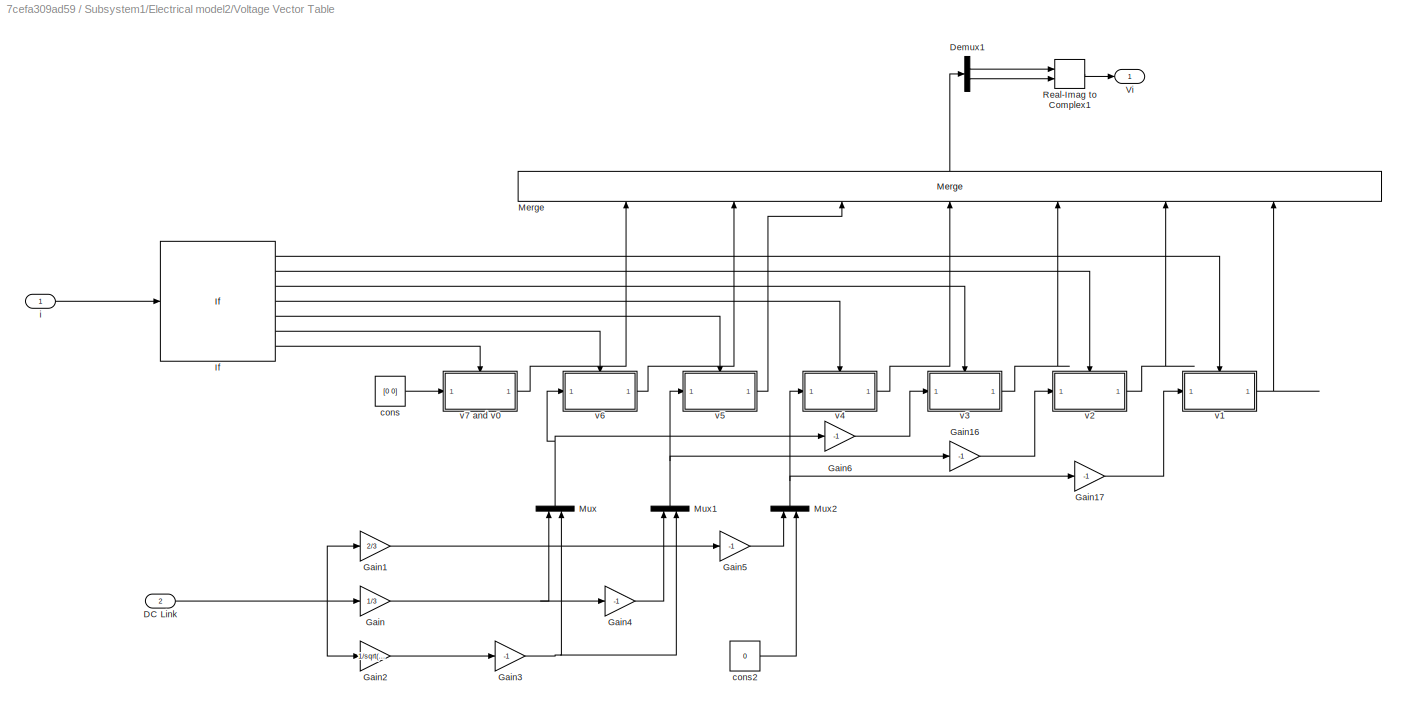
BLOCK [SubSystem] Subsystem1/Electrical model2/Voltage Vector Table
  Ports = [2, 1]
  RequestExecContextInheritance = off
  Variant = off
BLOCK [Inport] Subsystem1/Electrical model2/Voltage Vector Table/DC Link
  IconDisplay = Port number
  Port = 2
BLOCK [Demux] Subsystem1/Electrical model2/Voltage Vector Table/Demux1
  DisplayOption = bar
  Outputs = 2
  Ports = [1, 2]
BLOCK [Gain] Subsystem1/Electrical model2/Voltage Vector Table/Gain
  Gain = 1/3
  OutDataTypeStr = Inherit: Inherit via internal rule
  ParamDataTypeStr = Inherit: Inherit via internal rule
  SaturateOnIntegerOverflow = off
BLOCK [Gain] Subsystem1/Electrical model2/Voltage Vector Table/Gain1
  Gain = 2/3
  OutDataTypeStr = Inherit: Inherit via internal rule
  ParamDataTypeStr = Inherit: Inherit via internal rule
  SaturateOnIntegerOverflow = off
BLOCK [Gain] Subsystem1/Electrical model2/Voltage Vector Table/Gain16
  Gain = -1
  OutDataTypeStr = Inherit: Inherit via internal rule
  ParamDataTypeStr = Inherit: Inherit via internal rule
  SaturateOnIntegerOverflow = off
BLOCK [Gain] Subsystem1/Electrical model2/Voltage Vector Table/Gain17
  Gain = -1
  OutDataTypeStr = Inherit: Inherit via internal rule
  ParamDataTypeStr = Inherit: Inherit via internal rule
  SaturateOnIntegerOverflow = off
BLOCK [Gain] Subsystem1/Electrical model2/Voltage Vector Table/Gain2
  Gain = 1/sqrt(3)
  OutDataTypeStr = Inherit: Inherit via internal rule
  ParamDataTypeStr = Inherit: Inherit via internal rule
  SaturateOnIntegerOverflow = off
BLOCK [Gain] Subsystem1/Electrical model2/Voltage Vector Table/Gain3
  Gain = -1
  OutDataTypeStr = Inherit: Inherit via internal rule
  ParamDataTypeStr = Inherit: Inherit via internal rule
  SaturateOnIntegerOverflow = off
BLOCK [Gain] Subsystem1/Electrical model2/Voltage Vector Table/Gain4
  Gain = -1
  OutDataTypeStr = Inherit: Inherit via internal rule
  ParamDataTypeStr = Inherit: Inherit via internal rule
  SaturateOnIntegerOverflow = off
BLOCK [Gain] Subsystem1/Electrical model2/Voltage Vector Table/Gain5
  Gain = -1
  OutDataTypeStr = Inherit: Inherit via internal rule
  ParamDataTypeStr = Inherit: Inherit via internal rule
  SaturateOnIntegerOverflow = off
BLOCK [Gain] Subsystem1/Electrical model2/Voltage Vector Table/Gain6
  Gain = -1
  OutDataTypeStr = Inherit: Inherit via internal rule
  ParamDataTypeStr = Inherit: Inherit via internal rule
  SaturateOnIntegerOverflow = off
BLOCK [If] Subsystem1/Electrical model2/Voltage Vector Table/If
  ElseIfExpressions = u1==2, u1==3, u1==4, u1==5, u1==6, u1==7
  IfExpression = u1==1
  Ports = [1, 7]
  ShowElse = off
BLOCK [Merge] Subsystem1/Electrical model2/Voltage Vector Table/Merge
  Inputs = 7
  Ports = [7, 1]
BLOCK [Mux] Subsystem1/Electrical model2/Voltage Vector Table/Mux
  DisplayOption = bar
  Inputs = 2
  Ports = [2, 1]
BLOCK [Mux] Subsystem1/Electrical model2/Voltage Vector Table/Mux1
  DisplayOption = bar
  Inputs = 2
  Ports = [2, 1]
BLOCK [Mux] Subsystem1/Electrical model2/Voltage Vector Table/Mux2
  DisplayOption = bar
  Inputs = 2
  Ports = [2, 1]
BLOCK [RealImagToComplex] Subsystem1/Electrical model2/Voltage Vector Table/Real-Imag to Complex1
  Ports = [2, 1]
BLOCK [Outport] Subsystem1/Electrical model2/Voltage Vector Table/Vi
  IconDisplay = Port number
BLOCK [Constant] Subsystem1/Electrical model2/Voltage Vector Table/cons
  Value = [0 0]
BLOCK [Constant] Subsystem1/Electrical model2/Voltage Vector Table/cons2
  Value = 0
BLOCK [Inport] Subsystem1/Electrical model2/Voltage Vector Table/i
  IconDisplay = Port number
BLOCK [SubSystem] Subsystem1/Electrical model2/Voltage Vector Table/v1
  Ports = [1, 1, 0, 0, 0, 0, 0, 1]
  RequestExecContextInheritance = off
  TreatAsAtomicUnit = on
  Variant = off
BLOCK [ActionPort] Subsystem1/Electrical model2/Voltage Vector Table/v1/Action Port
  ActionType = then
BLOCK [Inport] Subsystem1/Electrical model2/Voltage Vector Table/v1/In1
  IconDisplay = Port number
BLOCK [Outport] Subsystem1/Electrical model2/Voltage Vector Table/v1/Out1
  IconDisplay = Port number
BLOCK [SubSystem] Subsystem1/Electrical model2/Voltage Vector Table/v2
  Ports = [1, 1, 0, 0, 0, 0, 0, 1]
  RequestExecContextInheritance = off
  TreatAsAtomicUnit = on
  Variant = off
BLOCK [ActionPort] Subsystem1/Electrical model2/Voltage Vector Table/v2/Action Port
  ActionType = elseif
BLOCK [Inport] Subsystem1/Electrical model2/Voltage Vector Table/v2/In1
  IconDisplay = Port number
BLOCK [Outport] Subsystem1/Electrical model2/Voltage Vector Table/v2/Out1
  IconDisplay = Port number
BLOCK [SubSystem] Subsystem1/Electrical model2/Voltage Vector Table/v3
  Ports = [1, 1, 0, 0, 0, 0, 0, 1]
  RequestExecContextInheritance = off
  TreatAsAtomicUnit = on
  Variant = off
BLOCK [ActionPort] Subsystem1/Electrical model2/Voltage Vector Table/v3/Action Port
  ActionType = elseif
BLOCK [Inport] Subsystem1/Electrical model2/Voltage Vector Table/v3/In1
  IconDisplay = Port number
BLOCK [Outport] Subsystem1/Electrical model2/Voltage Vector Table/v3/Out1
  IconDisplay = Port number
BLOCK [SubSystem] Subsystem1/Electrical model2/Voltage Vector Table/v4
  Ports = [1, 1, 0, 0, 0, 0, 0, 1]
  RequestExecContextInheritance = off
  TreatAsAtomicUnit = on
  Variant = off
BLOCK [ActionPort] Subsystem1/Electrical model2/Voltage Vector Table/v4/Action Port
  ActionType = elseif
BLOCK [Inport] Subsystem1/Electrical model2/Voltage Vector Table/v4/In1
  IconDisplay = Port number
BLOCK [Outport] Subsystem1/Electrical model2/Voltage Vector Table/v4/Out1
  IconDisplay = Port number
BLOCK [SubSystem] Subsystem1/Electrical model2/Voltage Vector Table/v5
  Ports = [1, 1, 0, 0, 0, 0, 0, 1]
  RequestExecContextInheritance = off
  TreatAsAtomicUnit = on
  Variant = off
BLOCK [ActionPort] Subsystem1/Electrical model2/Voltage Vector Table/v5/Action Port
  ActionType = elseif
BLOCK [Inport] Subsystem1/Electrical model2/Voltage Vector Table/v5/In1
  IconDisplay = Port number
BLOCK [Outport] Subsystem1/Electrical model2/Voltage Vector Table/v5/Out1
  IconDisplay = Port number
BLOCK [SubSystem] Subsystem1/Electrical model2/Voltage Vector Table/v6
  Ports = [1, 1, 0, 0, 0, 0, 0, 1]
  RequestExecContextInheritance = off
  TreatAsAtomicUnit = on
  Variant = off
BLOCK [ActionPort] Subsystem1/Electrical model2/Voltage Vector Table/v6/Action Port
  ActionType = elseif
BLOCK [Inport] Subsystem1/Electrical model2/Voltage Vector Table/v6/In1
  IconDisplay = Port number
BLOCK [Outport] Subsystem1/Electrical model2/Voltage Vector Table/v6/Out1
  IconDisplay = Port number
BLOCK [SubSystem] Subsystem1/Electrical model2/Voltage Vector Table/v7 and v0
  Ports = [1, 1, 0, 0, 0, 0, 0, 1]
  RequestExecContextInheritance = off
  TreatAsAtomicUnit = on
  Variant = off
BLOCK [ActionPort] Subsystem1/Electrical model2/Voltage Vector Table/v7 and v0/Action Port
  ActionType = elseif
BLOCK [Inport] Subsystem1/Electrical model2/Voltage Vector Table/v7 and v0/In1
  IconDisplay = Port number
BLOCK [Outport] Subsystem1/Electrical model2/Voltage Vector Table/v7 and v0/Out1
  IconDisplay = Port number
BLOCK [SubSystem] Subsystem1/Electrical model2/abc2qd
  Ports = [2, 2]
  RequestExecContextInheritance = off
  Variant = off
BLOCK [Fcn] Subsystem1/Electrical model2/abc2qd/Fcn2
  Expr = (u[4]*(2*u[1]+u[2]) + (sqrt(3)*u[2]*u[3])) * 1/3
BLOCK [Fcn] Subsystem1/Electrical model2/abc2qd/Fcn3
  Expr = (u[3]*(2*u[1]+u[2]) + (-sqrt(3)*u[2]*u[4])) * 1/3
BLOCK [Mux] Subsystem1/Electrical model2/abc2qd/Mux
  DisplayOption = bar
  Inputs = 2
  Ports = [2, 1]
BLOCK [Mux] Subsystem1/Electrical model2/abc2qd/Mux1
  DisplayOption = bar
  Inputs = 2
  Ports = [2, 1]
BLOCK [Mux] Subsystem1/Electrical model2/abc2qd/Mux2
  DisplayOption = bar
  Inputs = 2
  Ports = [2, 1]
BLOCK [Scope] Subsystem1/Electrical model2/abc2qd/Scope
  Ports = [1]
BLOCK [Trigonometry] Subsystem1/Electrical model2/abc2qd/Trigonometric Function1
  Operator = cos
  Ports = [1, 1]
BLOCK [Trigonometry] Subsystem1/Electrical model2/abc2qd/Trigonometric Function2
  Ports = [1, 1]
BLOCK [Inport] Subsystem1/Electrical model2/abc2qd/Vab,Vbc
  IconDisplay = Port number
BLOCK [Outport] Subsystem1/Electrical model2/abc2qd/s,c
  IconDisplay = Port number
  InitialOutput = 0
BLOCK [Inport] Subsystem1/Electrical model2/abc2qd/theta
  IconDisplay = Port number
  Port = 2
BLOCK [Outport] Subsystem1/Electrical model2/abc2qd/vq,vd
  IconDisplay = Port number
  InitialOutput = 0
  Port = 2
BLOCK [SubSystem] Subsystem1/Electrical model2/current and power prediction
  Ports = [2, 2]
  RequestExecContextInheritance = off
  Variant = off
BLOCK [Inport] Subsystem1/Electrical model2/current and power prediction/Iqd P
  IconDisplay = Port number
BLOCK [Outport] Subsystem1/Electrical model2/current and power prediction/Iqd_p
  IconDisplay = Port number
  Port = 2
BLOCK [Outport] Subsystem1/Electrical model2/current and power prediction/Power
  IconDisplay = Port number
BLOCK [ToWorkspace] Subsystem1/Electrical model2/current and power prediction/To Workspace
  FixptAsFi = on
  MaxDataPoints = inf
  Ports = [1]
  SampleTime = -1
  Save2DSignal = 2-D array (concatenate along first dimension)
  VariableName = IqId
BLOCK [Inport] Subsystem1/Electrical model2/current and power prediction/Vi
  IconDisplay = Port number
  Port = 2
BLOCK [SubSystem] Subsystem1/Electrical model2/current and power prediction/cost function
  ErrorFcn = Stateflow.Translate.translate
  PermitHierarchicalResolution = ExplicitOnly
  Ports = [1, 3]
  RequestExecContextInheritance = off
  SFBlockType = MATLAB Function
  TreatAsAtomicUnit = on
  Variant = off
BLOCK [Demux] Subsystem1/Electrical model2/current and power prediction/cost function/ Demux 
  Outputs = 1
  Ports = [1, 1]
BLOCK [S-Function] Subsystem1/Electrical model2/current and power prediction/cost function/ SFunction 
  EnableBusSupport = on
  FunctionName = sf_sfun
  PortCounts = [1 4]
  Ports = [1, 4]
  SFunctionDeploymentMode = off
  Tag = Stateflow S-Function electrical_model 2
BLOCK [Terminator] Subsystem1/Electrical model2/current and power prediction/cost function/ Terminator 
BLOCK [Outport] Subsystem1/Electrical model2/current and power prediction/cost function/Iqd_next
  IconDisplay = Port number
  Port = 2
BLOCK [Outport] Subsystem1/Electrical model2/current and power prediction/cost function/P
  IconDisplay = Port number
BLOCK [Outport] Subsystem1/Electrical model2/current and power prediction/cost function/cost
  IconDisplay = Port number
  Port = 3
BLOCK [Inport] Subsystem1/Electrical model2/current and power prediction/cost function/u
  IconDisplay = Port number
BLOCK [SubSystem] Subsystem1/Electrical model2/iq,id1
  Ports = [2, 1]
  RequestExecContextInheritance = off
  Variant = off
BLOCK [Demux] Subsystem1/Electrical model2/iq,id1/Demux
  Outputs = 2
  Ports = [1, 2]
BLOCK [Mux] Subsystem1/Electrical model2/iq,id1/Mux
  Inputs = 2
  Ports = [2, 1]
BLOCK [SubSystem] Subsystem1/Electrical model2/iq,id1/id
  Ports = [3, 1]
  RequestExecContextInheritance = off
  Variant = off
BLOCK [Gain] Subsystem1/Electrical model2/iq,id1/id/1//Ld
  Gain = 1/Li
BLOCK [DiscreteIntegrator] Subsystem1/Electrical model2/iq,id1/id/Discrete-Time Integrator
  ICPrevOutput = DiscIntNeverNeededParam
  ICPrevScaledInput = DiscIntNeverNeededParam
  Ports = [1, 1]
  SampleTime = Ts
BLOCK [Product] Subsystem1/Electrical model2/iq,id1/id/Product
  Ports = [2, 1]
  RndMeth = Floor
BLOCK [Gain] Subsystem1/Electrical model2/iq,id1/id/R//Ld
  Gain = ri/Li
BLOCK [Sum] Subsystem1/Electrical model2/iq,id1/id/Sum
  Inputs = -++
  Ports = [3, 1]
BLOCK [Outport] Subsystem1/Electrical model2/iq,id1/id/id
  IconDisplay = Port number
  InitialOutput = 0
BLOCK [Inport] Subsystem1/Electrical model2/iq,id1/id/iq
  IconDisplay = Port number
BLOCK [Inport] Subsystem1/Electrical model2/iq,id1/id/vd
  IconDisplay = Port number
  Port = 3
BLOCK [Inport] Subsystem1/Electrical model2/iq,id1/id/we
  IconDisplay = Port number
  Port = 2
BLOCK [SubSystem] Subsystem1/Electrical model2/iq,id1/iq
  Ports = [3, 1]
  RequestExecContextInheritance = off
  Variant = off
BLOCK [Outport] Subsystem1/Electrical model2/iq,id1/iq,id
  IconDisplay = Port number
  InitialOutput = 0
BLOCK [Gain] Subsystem1/Electrical model2/iq,id1/iq/1//Lq
  Gain = 1/Li
BLOCK [DiscreteIntegrator] Subsystem1/Electrical model2/iq,id1/iq/Discrete-Time Integrator
  ICPrevOutput = DiscIntNeverNeededParam
  ICPrevScaledInput = DiscIntNeverNeededParam
  Ports = [1, 1]
  SampleTime = Ts
BLOCK [Product] Subsystem1/Electrical model2/iq,id1/iq/Product1
  Ports = [2, 1]
  RndMeth = Floor
BLOCK [Gain] Subsystem1/Electrical model2/iq,id1/iq/R//Lq
  Gain = ri/Li
BLOCK [Sum] Subsystem1/Electrical model2/iq,id1/iq/Sum1
  Inputs = ---+
  Ports = [4, 1]
BLOCK [Inport] Subsystem1/Electrical model2/iq,id1/iq/id
  IconDisplay = Port number
  Port = 3
BLOCK [Outport] Subsystem1/Electrical model2/iq,id1/iq/iq
  IconDisplay = Port number
  InitialOutput = 0
BLOCK [Gain] Subsystem1/Electrical model2/iq,id1/iq/lam//Lq
  Gain = F/Li
BLOCK [Inport] Subsystem1/Electrical model2/iq,id1/iq/vq
  IconDisplay = Port number
BLOCK [Inport] Subsystem1/Electrical model2/iq,id1/iq/we
  IconDisplay = Port number
  Port = 2
BLOCK [Inport] Subsystem1/Electrical model2/iq,id1/vq,vd
  IconDisplay = Port number
BLOCK [Inport] Subsystem1/Electrical model2/iq,id1/we
  IconDisplay = Port number
  Port = 2
BLOCK [Outport] Subsystem1/Electrical model2/iqd
  IconDisplay = Port number
  InitialOutput = 0
  Port = 2
BLOCK [Outport] Subsystem1/Electrical model2/isabc
  IconDisplay = Port number
  InitialOutput = 0
BLOCK [SubSystem] Subsystem1/Electrical model2/qd2abc
  Ports = [2, 1]
  RequestExecContextInheritance = off
  Variant = off
BLOCK [Fcn] Subsystem1/Electrical model2/qd2abc/Fcn
  Expr = u[3]*u[2] + u[4]*u[1]
BLOCK [Fcn] Subsystem1/Electrical model2/qd2abc/Fcn1
  Expr = (u[2]*(-u[3]-sqrt(3)*u[4]) + u[1]*(sqrt(3)*u[3]-u[4]))*0.5
BLOCK [Mux] Subsystem1/Electrical model2/qd2abc/Mux1
  DisplayOption = bar
  Inputs = 2
  Ports = [2, 1]
BLOCK [Mux] Subsystem1/Electrical model2/qd2abc/Mux3
  DisplayOption = bar
  Inputs = 3
  Ports = [3, 1]
BLOCK [Sum] Subsystem1/Electrical model2/qd2abc/Sum
  Inputs = --
  Ports = [2, 1]
BLOCK [Inport] Subsystem1/Electrical model2/qd2abc/iq,id
  IconDisplay = Port number
  Port = 2
BLOCK [Outport] Subsystem1/Electrical model2/qd2abc/is
  IconDisplay = Port number
  InitialOutput = 0
BLOCK [Inport] Subsystem1/Electrical model2/qd2abc/s,c
  IconDisplay = Port number
BLOCK [Inport] Subsystem1/Electrical model2/theta
  IconDisplay = Port number
  Port = 3
BLOCK [Inport] Subsystem1/Electrical model2/v
  IconDisplay = Port number
BLOCK [Outport] Subsystem1/Electrical model2/vqd
  IconDisplay = Port number
  InitialOutput = 0
  Port = 3
BLOCK [Inport] Subsystem1/Electrical model2/we
  IconDisplay = Port number
  Port = 2
BLOCK [TriggerPort] Subsystem1/Trigger
  PortDimensions = 1
  Ports = []
  StatesWhenEnabling = held
  VariantControl = Variant
BLOCK [Outport] Subsystem1/gating signals
  IconDisplay = Port number
  Port = 4
BLOCK [Outport] Subsystem1/ia,b,c
  IconDisplay = Port number
BLOCK [Outport] Subsystem1/iq,d
  IconDisplay = Port number
  Port = 2
BLOCK [Inport] Subsystem1/theta
  IconDisplay = Port number
  Port = 3
BLOCK [Inport] Subsystem1/v
  IconDisplay = Port number
BLOCK [Inport] Subsystem1/vdc
  IconDisplay = Port number
  Port = 4
BLOCK [Outport] Subsystem1/vq,d
  IconDisplay = Port number
  Port = 3
BLOCK [Inport] Subsystem1/we
  IconDisplay = Port number
  Port = 2
BLOCK [Reference] Three-Phase V-I Measurement  REF=powerlib/Measurements/Three-Phase
V-I Measurement
  Ports = [0, 2, 0, 0, 0, 3, 3]
  SourceBlock = powerlib/Measurements/Three-Phase\nV-I Measurement
  SourceType = Three-Phase VI Measurement
BLOCK [Reference] Vab  REF=powerlib/Measurements/Voltage Measurement
  AttributesFormatString = \n
  Ports = [0, 1, 0, 0, 0, 2]
  SourceBlock = powerlib/Measurements/Voltage Measurement
  SourceType = Voltage Measurement
  Tag = PoWeRsYsTeMmEaSuReMeNt
BLOCK [Reference] powergui2  REF=powerlib/powergui
  Ports = []
  Priority = 1
  SourceBlock = powerlib/powergui
  SourceType = PSB option menu block
  UserDataPersistent = on
BLOCK [Constant] we
  Value = w_g
ANNOTATION Subsystem/Electrical model1/Hall effect sensor/Angle converter: This subsystem convert 0,infinite angle to -180,180 angle
ANNOTATION Subsystem/Electrical model1/abc2qd: This subsystem converts Vab and Vbc to Vd,Vq. The sine and cosine com- puted here are sent to the inverse transformation subsystem dq2abc.
ANNOTATION Subsystem/Other/Electrical model/Hall effect sensor/Angle converter: This subsystem convert 0,infinite angle to -180,180 angle
ANNOTATION Subsystem/Other/Electrical model/abc2qd: This subsystem converts Vab and Vbc to Vd,Vq. The sine and cosine com- puted here are sent to the inverse transformation subsystem dq2abc.
ANNOTATION Subsystem1/Electrical model2: MPC
ANNOTATION Subsystem1/Electrical model2: Transform
ANNOTATION Subsystem1/Electrical model2/Hall effect sensor/Angle converter: This subsystem convert 0,infinite angle to -180,180 angle
ANNOTATION Subsystem1/Electrical model2/abc2qd: This subsystem converts Vab and Vbc to Vd,Vq. The sine and cosine com- puted here are sent to the inverse transformation subsystem dq2abc.
LINE Current Measurement:1 -> Scope3:1
LINE Demux:1 -> Mux1:1
LINE Demux:2 -> Mux1:2
LINE From1:1 -> Subsystem1:4
LINE From:1 -> IGBT Inverter1:1
LINE Mux1:1 -> Subsystem1:1
NET PLL (3ph):2 -> Scope:1, Subsystem1:3
LINE Pulse Generator:1 -> Subsystem1:trigger
LINE Subsystem/Electrical model1:1 -> Subsystem/Scope1:1
NET Subsystem/Electrical model1:2 -> Subsystem/Scope1:5, Subsystem/To Workspace1:1
LINE Subsystem/Electrical model1:3 -> Subsystem/Scope1:3
LINE Subsystem/Electrical model1:4 -> Subsystem/Scope1:4
LINE Subsystem/In1:1 -> Subsystem/PLL (3ph):1
LINE Subsystem/Mux3:1 -> Subsystem/Electrical model1:1
LINE Subsystem/Mux4:1 -> Subsystem/Scope1:2
LINE Subsystem/Other/Electrical model:1 -> Subsystem/Other/Scope:1
NET Subsystem/Other/Electrical model:2 -> Subsystem/Other/MPC Controller:1, Subsystem/Other/Scope:5, Subsystem/Other/To Workspace:1
LINE Subsystem/Other/Electrical model:3 -> Subsystem/Other/Scope:3
LINE Subsystem/Other/Electrical model:4 -> Subsystem/Other/Scope:4
LINE Subsystem/Other/MPC Controller:1 -> Subsystem/Other/Electrical model:1
LINE Subsystem/Other/Mux1:1 -> Subsystem/Other/Scope:2
LINE Subsystem/Other/Mux2:1 -> Subsystem/Other/MPC Controller:2
LINE Subsystem/Other/Mux:1 -> Subsystem/Other/Out1:1
LINE Subsystem/Other/Sum1:1 -> Subsystem/Other/Mux:2
LINE Subsystem/Other/Sum:1 -> Subsystem/Other/Mux:1
NET Subsystem/Other/a:1 -> Subsystem/Other/Mux1:1, Subsystem/Other/Sum:1
NET Subsystem/Other/b:1 -> Subsystem/Other/Mux1:2, Subsystem/Other/Sum1:1, Subsystem/Other/Sum:2
NET Subsystem/Other/c:1 -> Subsystem/Other/Mux1:3, Subsystem/Other/Sum1:2
LINE Subsystem/Other/id_ref:1 -> Subsystem/Other/Mux2:2
LINE Subsystem/Other/iq_ref:1 -> Subsystem/Other/Mux2:1
LINE Subsystem/Other/we:1 -> Subsystem/Other/Electrical model:2
LINE Subsystem/Other:1 -> Subsystem/Out1:1
LINE Subsystem/PLL (3ph):1 -> Subsystem/Out2:1
LINE Subsystem/PLL (3ph):2 -> Subsystem/Out3:1
LINE Subsystem/Sum2:1 -> Subsystem/Mux3:1
LINE Subsystem/Sum3:1 -> Subsystem/Mux3:2
NET Subsystem/a1:1 -> Subsystem/Mux4:1, Subsystem/Sum2:1
NET Subsystem/b1:1 -> Subsystem/Mux4:2, Subsystem/Sum2:2, Subsystem/Sum3:1
NET Subsystem/c1:1 -> Subsystem/Mux4:3, Subsystem/Sum3:2
LINE Subsystem/we1:1 -> Subsystem/Electrical model1:2
LINE Subsystem1/Electrical model2:1 -> Subsystem1/ia,b,c:1
LINE Subsystem1/Electrical model2:2 -> Subsystem1/iq,d:1
LINE Subsystem1/Electrical model2:3 -> Subsystem1/vq,d:1
LINE Subsystem1/Electrical model2:4 -> Subsystem1/gating signals:1
LINE Subsystem1/theta:1 -> Subsystem1/Electrical model2:3
LINE Subsystem1/v:1 -> Subsystem1/Electrical model2:1
LINE Subsystem1/vdc:1 -> Subsystem1/Electrical model2:4
LINE Subsystem1/we:1 -> Subsystem1/Electrical model2:2
LINE Subsystem1:1 -> Scope2:1
LINE Subsystem1:2 -> Scope2:2
LINE Subsystem1:3 -> Scope2:3
LINE Subsystem1:4 -> Goto:1
LINE Three-Phase V-I Measurement:1 -> Demux:1
LINE Three-Phase V-I Measurement:2 -> PLL (3ph):1
LINE Vab:1 -> Goto1:1
LINE we:1 -> Subsystem1:2
PLINE Current Measurement:LConn1 -- IGBT Inverter1:RConn2
PNET net1: Current Measurement:RConn1 -- DC Voltage Source:LConn1 -- Vab:LConn2
PNET net2: DC Voltage Source:RConn1 -- IGBT Inverter1:RConn1 -- Vab:LConn1
PLINE IGBT Inverter1:LConn1 -- Three-Phase V-I Measurement:LConn1
PLINE IGBT Inverter1:LConn2 -- Three-Phase V-I Measurement:LConn2
PLINE IGBT Inverter1:LConn3 -- Three-Phase V-I Measurement:LConn3
PLINE Motor Windings/A:RConn1 -- Motor Windings/phasea:LConn1
PLINE Motor Windings/B:RConn1 -- Motor Windings/phaseb:LConn1
PLINE Motor Windings/C:RConn1 -- Motor Windings/phasec:LConn1
PNET net3: Motor Windings/phasea:RConn1 -- Motor Windings/phaseb:RConn1 -- Motor Windings/phasec:RConn1
PLINE Motor Windings:LConn1 -- Three-Phase V-I Measurement:RConn1
PLINE Motor Windings:LConn2 -- Three-Phase V-I Measurement:RConn2
PLINE Motor Windings:LConn3 -- Three-Phase V-I Measurement:RConn3
note: NET lines group one-source signal fan-out (src -> all destinations, sorted); 1:1 wires keep LINE; PNET lines group multi-terminal physical nets as a canonical sorted terminal list (undirected conserving connections); 2-terminal nets keep the pairwise PLINE form
CHART Subsystem1/Electrical model2/current and power prediction/cost function states=1 transitions=1
  STATE_LABEL 'eML_blk_kernel()'
  STATE_LABEL 'SCRIPT:\nfunction [P,Iqd_next,cost] = fcn(u)\n%%initialization\n\nN=22.5; %rpm rated speed,the generator will works at its maximum rated speed\nr=22.9;  %m radius of the rotor\nCp_op=0.43;\nCp_min=0.32;\nCp_max=0.52; %min and max values of the power coefficient change the reference power of the generator if to beused\n\n\nF=1;\nri=0.1;  % Grid side converter harmonic filter resistance\nTs=1e-4;%data sampling t...<+1434ch>'
